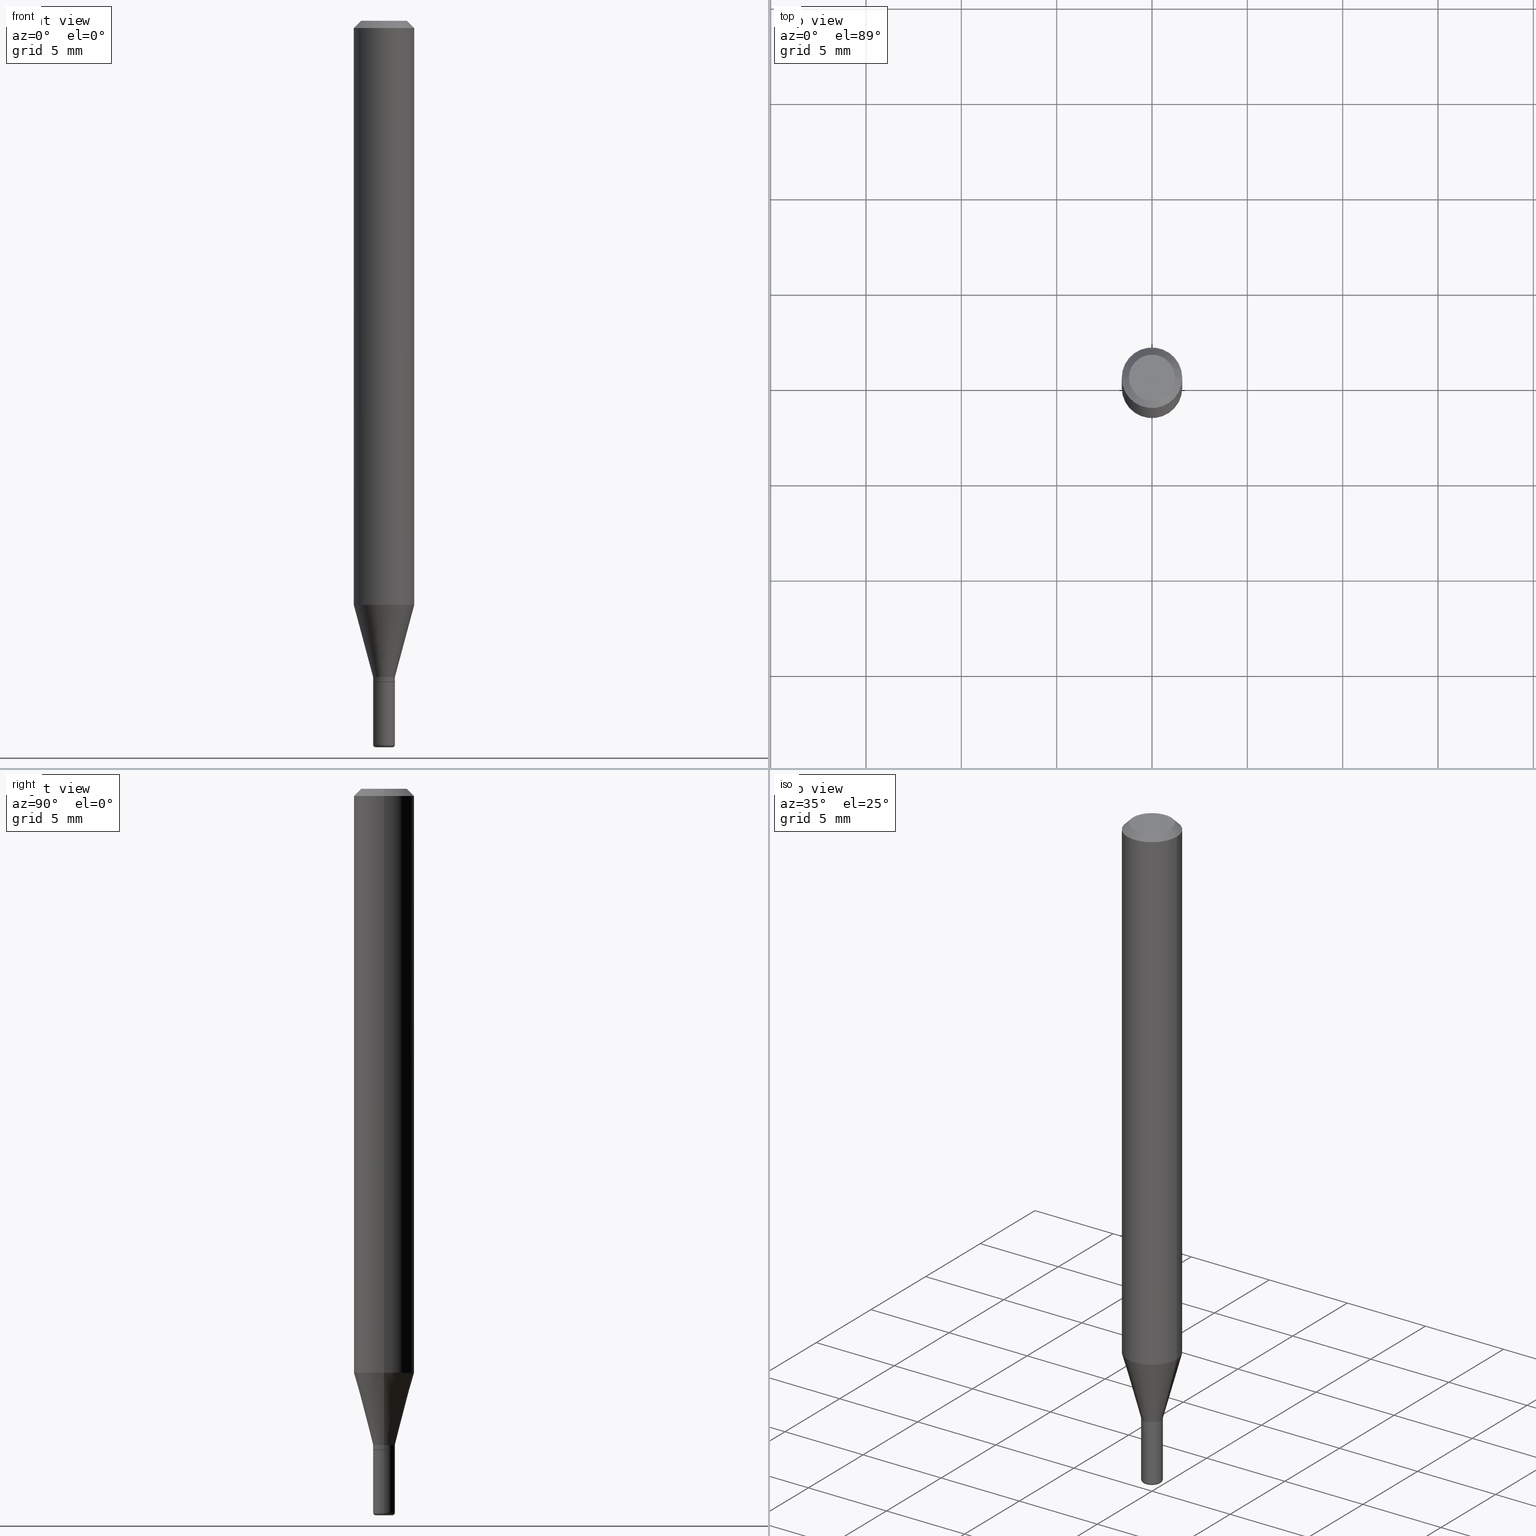
[diagram: canonical four-view strip — front | top / right | iso, engineering-drawing reading convention]
A machine part, canonical four-view strip (front | top / right | iso — engineering-drawing reading convention). The complete STEP part file that produces these views, byte-faithful:
ISO-10303-21;
HEADER;
FILE_DESCRIPTION (( 'STEP AP203' ),
    '1' );
FILE_NAME ('08518.STEP',
    '2024-02-29T19:40:51',
    ( '' ),
    ( '' ),
    'SwSTEP 2.0',
    'SolidWorks 2023',
    '' );
FILE_SCHEMA (( 'CONFIG_CONTROL_DESIGN' ));
ENDSEC;

DATA;
#1 = DIRECTION ( 'NONE',  ( -2.445468806185136597E-29, 3.491481338843145583E-15, 1.000000000000000000 ) ) ;
#2 = CIRCLE ( 'NONE', #133, 0.02249999999999999917 ) ;
#3 = CALENDAR_DATE ( 2024, 29, 2 ) ;
#4 = CARTESIAN_POINT ( 'NONE',  ( 0.02250000000000007896, -4.888073874380405630E-15, -1.355000000000000426 ) ) ;
#5 = VERTEX_POINT ( 'NONE', #52 ) ;
#6 = ORIENTED_EDGE ( 'NONE', *, *, #360, .T. ) ;
#7 = AXIS2_PLACEMENT_3D ( 'NONE', #255, #406, #297 ) ;
#8 = DIRECTION ( 'NONE',  ( 1.000000000000000000, -6.982962677686273810E-15, 0.000000000000000000 ) ) ;
#9 = DIRECTION ( 'NONE',  ( -2.445468806185136597E-29, 3.491481338843145583E-15, 1.000000000000000000 ) ) ;
#10 = ORIENTED_EDGE ( 'NONE', *, *, #319, .F. ) ;
#11 = CARTESIAN_POINT ( 'NONE',  ( 3.655975865246779683E-29, -5.219764601570503930E-15, -1.495000000000000329 ) ) ;
#12 = COORDINATED_UNIVERSAL_TIME_OFFSET ( 5, 0, .BEHIND. ) ;
#13 = CC_DESIGN_PERSON_AND_ORGANIZATION_ASSIGNMENT ( #193, #419, ( #377 ) ) ;
#14 = EDGE_LOOP ( 'NONE', ( #161, #6, #473, #139 ) ) ;
#15 = CIRCLE ( 'NONE', #20, 0.005000000000000181383 ) ;
#16 = DIRECTION ( 'NONE',  ( -2.445468806185136597E-29, 3.491481338843145583E-15, 1.000000000000000000 ) ) ;
#17 = FACE_OUTER_BOUND ( 'NONE', #518, .T. ) ;
#18 = MECHANICAL_CONTEXT ( 'NONE', #486, 'mechanical' ) ;
#19 = FACE_OUTER_BOUND ( 'NONE', #75, .T. ) ;
#20 = AXIS2_PLACEMENT_3D ( 'NONE', #114, #395, #160 ) ;
#21 = CLOSED_SHELL ( 'NONE', ( #245, #349, #184, #100, #317, #359 ) ) ;
#22 = MANIFOLD_SOLID_BREP ( 'Body-Move/Copy2[1]', #21 ) ;
#23 = DATE_AND_TIME ( #312, #436 ) ;
#24 = CARTESIAN_POINT ( 'NONE',  ( 0.06250000000000000000, -4.646176951478207651E-15, -1.205717967697245596 ) ) ;
#25 = MANIFOLD_SOLID_BREP ( 'Body-Move/Copy2[2]', #351 ) ;
#26 = CC_DESIGN_PERSON_AND_ORGANIZATION_ASSIGNMENT ( #58, #226, ( #42 ) ) ;
#27 = CARTESIAN_POINT ( 'NONE',  ( -0.06250000000000000000, 4.440892098500626162E-16, -3.074334431409316114E-30 ) ) ;
#28 = APPROVAL_DATE_TIME ( #240, #384 ) ;
#29 = DIRECTION ( 'NONE',  ( 1.000000000000000000, -6.982962677686261977E-15, 0.000000000000000000 ) ) ;
#30 = EDGE_CURVE ( 'NONE', #197, #336, #113, .T. ) ;
#31 = ORIENTED_EDGE ( 'NONE', *, *, #35, .F. ) ;
#32 = AXIS2_PLACEMENT_3D ( 'NONE', #135, #195, #357 ) ;
#33 = CONICAL_SURFACE ( 'NONE', #315, 0.06250000000000000000, 0.7853981633974488341 ) ;
#34 = VERTEX_POINT ( 'NONE', #81 ) ;
#35 = EDGE_CURVE ( 'NONE', #460, #34, #111, .T. ) ;
#36 = FACE_OUTER_BOUND ( 'NONE', #514, .T. ) ;
#37 = CARTESIAN_POINT ( 'NONE',  ( -0.02250000000000007896, -4.571085098586440920E-15, -1.355000000000000426 ) ) ;
#38 = FACE_OUTER_BOUND ( 'NONE', #85, .T. ) ;
#39 = CIRCLE ( 'NONE', #342, 0.02250000000000017958 ) ;
#40 = EDGE_CURVE ( 'NONE', #162, #206, #444, .T. ) ;
#41 = CARTESIAN_POINT ( 'NONE',  ( 3.338064920442711836E-29, -4.765872027520893280E-15, -1.364999999999999991 ) ) ;
#42 = SECURITY_CLASSIFICATION ( '', '', #65 ) ;
#43 = CARTESIAN_POINT ( 'NONE',  ( 0.06250000000000000000, -4.364351673553916694E-16, 3.047610484872459871E-30 ) ) ;
#44 = ORIENTED_EDGE ( 'NONE', *, *, #186, .T. ) ;
#45 = DIRECTION ( 'NONE',  ( -2.445468806185136877E-29, 3.491481338843145188E-15, 1.000000000000000000 ) ) ;
#46 = CARTESIAN_POINT ( 'NONE',  ( 0.02250000000000008937, -1.571166602479416074E-16, 1.097139774554090038E-30 ) ) ;
#47 = CARTESIAN_POINT ( 'NONE',  ( 0.000000000000000000, 0.000000000000000000, 0.000000000000000000 ) ) ;
#48 = DIRECTION ( 'NONE',  ( -2.445468806185136597E-29, 3.491481338843145583E-15, 1.000000000000000000 ) ) ;
#49 = ORIENTED_EDGE ( 'NONE', *, *, #251, .F. ) ;
#50 = APPROVAL_ROLE ( '' ) ;
#51 = CARTESIAN_POINT ( 'NONE',  ( 3.655975865246779683E-29, -5.219764601570503930E-15, -1.495000000000000329 ) ) ;
#52 = CARTESIAN_POINT ( 'NONE',  ( 0.06250000000000000000, -4.888073874380378612E-16, -0.01499999999999970281 ) ) ;
#53 = CARTESIAN_POINT ( 'NONE',  ( 3.338064920442711836E-29, -4.765872027520893280E-15, -1.364999999999999991 ) ) ;
#54 = VERTEX_POINT ( 'NONE', #399 ) ;
#55 = EDGE_CURVE ( 'NONE', #439, #469, #381, .T. ) ;
#56 = DIRECTION ( 'NONE',  ( 1.000000000000000000, -6.982962677686286432E-15, 0.000000000000000000 ) ) ;
#57 = ORIENTED_EDGE ( 'NONE', *, *, #301, .F. ) ;
#58 = PERSON_AND_ORGANIZATION ( #137, #218 ) ;
#59 = APPROVAL_DATE_TIME ( #265, #475 ) ;
#60 = CIRCLE ( 'NONE', #458, 0.01749999999999999820 ) ;
#61 = AXIS2_PLACEMENT_3D ( 'NONE', #223, #332, #83 ) ;
#62 = CARTESIAN_POINT ( 'NONE',  ( 3.338064920442711836E-29, -4.765872027520893280E-15, -1.364999999999999991 ) ) ;
#63 = EDGE_CURVE ( 'NONE', #439, #87, #134, .T. ) ;
#64 = EDGE_CURVE ( 'NONE', #336, #170, #340, .T. ) ;
#65 = SECURITY_CLASSIFICATION_LEVEL ( 'unclassified' ) ;
#66 = DIRECTION ( 'NONE',  ( 1.000000000000000000, -6.982962677686266711E-15, 0.000000000000000000 ) ) ;
#67 = ADVANCED_BREP_SHAPE_REPRESENTATION ( '08518', ( #22, #25, #487 ), #299 ) ;
#68 = CC_DESIGN_PERSON_AND_ORGANIZATION_ASSIGNMENT ( #230, #182, ( #397 ) ) ;
#69 = AXIS2_PLACEMENT_3D ( 'NONE', #138, #16, #491 ) ;
#70 = PERSON_AND_ORGANIZATION ( #137, #218 ) ;
#71 = LOCAL_TIME ( 14, 40, 51.00000000000000000, #104 ) ;
#72 = CARTESIAN_POINT ( 'NONE',  ( 0.02250000000000008590, -1.571166602479415828E-16, 1.097139774554089687E-30 ) ) ;
#73 = ADVANCED_FACE ( 'NONE', ( #515 ), #437, .T. ) ;
#74 = EDGE_LOOP ( 'NONE', ( #402, #380, #393, #248 ) ) ;
#75 = EDGE_LOOP ( 'NONE', ( #480, #370, #476, #372 ) ) ;
#76 = CARTESIAN_POINT ( 'NONE',  ( 2.948545679060552191E-29, -4.209741784122815192E-15, -1.205717967697245596 ) ) ;
#77 = AXIS2_PLACEMENT_3D ( 'NONE', #363, #322, #464 ) ;
#78 = ORIENTED_EDGE ( 'NONE', *, *, #266, .F. ) ;
#79 = DIRECTION ( 'NONE',  ( -2.445468806185136597E-29, 3.491481338843145583E-15, 1.000000000000000000 ) ) ;
#80 = ORIENTED_EDGE ( 'NONE', *, *, #438, .F. ) ;
#81 = CARTESIAN_POINT ( 'NONE',  ( -0.02200000000000008546, -4.606903398479559111E-15, -1.364999999999999991 ) ) ;
#82 = CONICAL_SURFACE ( 'NONE', #225, 0.06250000000000000000, 0.7853981633974488341 ) ;
#83 = DIRECTION ( 'NONE',  ( 1.000000000000000000, -6.982962677686266711E-15, 0.000000000000000000 ) ) ;
#84 = LINE ( 'NONE', #37, #149 ) ;
#85 = EDGE_LOOP ( 'NONE', ( #129, #80, #435, #280 ) ) ;
#86 = ADVANCED_FACE ( 'NONE', ( #38 ), #82, .T. ) ;
#87 = VERTEX_POINT ( 'NONE', #466 ) ;
#88 = AXIS2_PLACEMENT_3D ( 'NONE', #185, #385, #237 ) ;
#89 = VECTOR ( 'NONE', #411, 39.37007874015748143 ) ;
#90 = CC_DESIGN_SECURITY_CLASSIFICATION ( #42, ( #377 ) ) ;
#91 = ORIENTED_EDGE ( 'NONE', *, *, #507, .T. ) ;
#92 = APPROVAL_STATUS ( 'not_yet_approved' ) ;
#93 = FACE_OUTER_BOUND ( 'NONE', #210, .T. ) ;
#94 = DIRECTION ( 'NONE',  ( -2.445468806185136597E-29, 3.491481338843145583E-15, 1.000000000000000000 ) ) ;
#95 = DIRECTION ( 'NONE',  ( -2.445468806185136877E-29, 3.491481338843145188E-15, 1.000000000000000000 ) ) ;
#96 = DIRECTION ( 'NONE',  ( -2.445468806185136597E-29, 3.491481338843145583E-15, 1.000000000000000000 ) ) ;
#97 = PRODUCT_RELATED_PRODUCT_CATEGORY ( 'detail', '', ( #303 ) ) ;
#98 = CIRCLE ( 'NONE', #330, 0.06250000000000000000 ) ;
#99 = APPROVAL_PERSON_ORGANIZATION ( #70, #384, #500 ) ;
#100 = ADVANCED_FACE ( 'NONE', ( #281 ), #431, .T. ) ;
#101 = PERSON_AND_ORGANIZATION ( #137, #218 ) ;
#102 = FACE_OUTER_BOUND ( 'NONE', #124, .T. ) ;
#103 = EDGE_CURVE ( 'NONE', #170, #121, #398, .T. ) ;
#104 = COORDINATED_UNIVERSAL_TIME_OFFSET ( 5, 0, .BEHIND. ) ;
#105 = AXIS2_PLACEMENT_3D ( 'NONE', #396, #9, #368 ) ;
#106 = AXIS2_PLACEMENT_3D ( 'NONE', #172, #212, #337 ) ;
#107 = CALENDAR_DATE ( 2024, 29, 2 ) ;
#108 = EDGE_CURVE ( 'NONE', #440, #5, #449, .T. ) ;
#109 = CARTESIAN_POINT ( 'NONE',  ( 0.02200000000000008546, -4.919497206429991905E-15, -1.364999999999999991 ) ) ;
#110 = TOROIDAL_SURFACE ( 'NONE', #144, 0.01749999999999999820, 0.005000000000000179648 ) ;
#111 = CIRCLE ( 'NONE', #321, 0.02200000000000008546 ) ;
#112 = VECTOR ( 'NONE', #294, 39.37007874015748143 ) ;
#113 = CIRCLE ( 'NONE', #348, 0.02250000000000008937 ) ;
#114 = CARTESIAN_POINT ( 'NONE',  ( -0.01749999999999999820, -5.095419622812485892E-15, -1.495000000000000107 ) ) ;
#115 = DIRECTION ( 'NONE',  ( -2.445468806185136877E-29, 3.491481338843145188E-15, 1.000000000000000000 ) ) ;
#116 = CC_DESIGN_DATE_AND_TIME_ASSIGNMENT ( #23, #457, ( #397 ) ) ;
#117 = ORIENTED_EDGE ( 'NONE', *, *, #151, .F. ) ;
#118 = DIRECTION ( 'NONE',  ( -2.445468806185136597E-29, 3.491481338843145583E-15, 1.000000000000000000 ) ) ;
#119 = CARTESIAN_POINT ( 'NONE',  ( 0.02250000000000007896, -4.888073874380405630E-15, -1.355000000000000426 ) ) ;
#120 = DIRECTION ( 'NONE',  ( -2.445468806185136597E-29, 3.491481338843145583E-15, 1.000000000000000000 ) ) ;
#121 = VERTEX_POINT ( 'NONE', #404 ) ;
#122 = CARTESIAN_POINT ( 'NONE',  ( 3.336842186039618474E-29, -4.764126286851472566E-15, -1.364499999999999824 ) ) ;
#123 =( NAMED_UNIT ( * ) PLANE_ANGLE_UNIT ( ) SI_UNIT ( $, .RADIAN. ) );
#124 = EDGE_LOOP ( 'NONE', ( #49, #220, #430, #382 ) ) ;
#125 = CYLINDRICAL_SURFACE ( 'NONE', #106, 0.02250000000000008590 ) ;
#126 = EDGE_CURVE ( 'NONE', #87, #439, #39, .T. ) ;
#127 = DIRECTION ( 'NONE',  ( 2.438088387897960049E-29, -3.491481338843145188E-15, -1.000000000000000000 ) ) ;
#128 = EDGE_CURVE ( 'NONE', #336, #197, #434, .T. ) ;
#129 = ORIENTED_EDGE ( 'NONE', *, *, #513, .F. ) ;
#130 = VERTEX_POINT ( 'NONE', #442 ) ;
#131 = LINE ( 'NONE', #168, #112 ) ;
#132 = DIRECTION ( 'NONE',  ( 1.000000000000000000, -6.982962677686283277E-15, 0.000000000000000000 ) ) ;
#133 = AXIS2_PLACEMENT_3D ( 'NONE', #445, #488, #263 ) ;
#134 = CIRCLE ( 'NONE', #422, 0.02250000000000017958 ) ;
#135 = CARTESIAN_POINT ( 'NONE',  ( 0.000000000000000000, 0.000000000000000000, 0.000000000000000000 ) ) ;
#136 = CARTESIAN_POINT ( 'NONE',  ( 3.313610232380861411E-29, -4.730957214132463998E-15, -1.355000000000000426 ) ) ;
#137 = PERSON ( 'UNSPECIFIED', 'UNSPECIFIED', 'UNSPECIFIED', ('UNSPECIFIED'), ('UNSPECIFIED'), ('UNSPECIFIED') ) ;
#138 = CARTESIAN_POINT ( 'NONE',  ( 3.668203209277706016E-29, -5.237222008264719754E-15, -1.500000000000000444 ) ) ;
#139 = ORIENTED_EDGE ( 'NONE', *, *, #64, .F. ) ;
#140 = PRODUCT_DEFINITION_SHAPE ( 'NONE', 'NONE',  #397 ) ;
#141 = ORIENTED_EDGE ( 'NONE', *, *, #64, .T. ) ;
#142 = DIRECTION ( 'NONE',  ( -2.445468806185136597E-29, 3.491481338843145583E-15, 1.000000000000000000 ) ) ;
#143 = CARTESIAN_POINT ( 'NONE',  ( 3.668203209277706016E-29, -5.237222008264719754E-15, -1.500000000000000444 ) ) ;
#144 = AXIS2_PLACEMENT_3D ( 'NONE', #302, #96, #415 ) ;
#145 = ORIENTED_EDGE ( 'NONE', *, *, #507, .F. ) ;
#146 = APPROVAL_STATUS ( 'not_yet_approved' ) ;
#147 = FACE_OUTER_BOUND ( 'NONE', #152, .T. ) ;
#148 = COORDINATED_UNIVERSAL_TIME_OFFSET ( 5, 0, .BEHIND. ) ;
#149 = VECTOR ( 'NONE', #338, 39.37007874015748854 ) ;
#150 = LOCAL_TIME ( 14, 40, 51.00000000000000000, #148 ) ;
#151 = EDGE_CURVE ( 'NONE', #440, #130, #472, .T. ) ;
#152 = EDGE_LOOP ( 'NONE', ( #408, #512 ) ) ;
#153 = AXIS2_PLACEMENT_3D ( 'NONE', #136, #94, #309 ) ;
#154 = DIRECTION ( 'NONE',  ( -2.445468806185136597E-29, 3.491481338843145583E-15, 1.000000000000000000 ) ) ;
#155 = CIRCLE ( 'NONE', #61, 0.06250000000000000000 ) ;
#156 = VECTOR ( 'NONE', #45, 39.37007874015748143 ) ;
#157 = CC_DESIGN_APPROVAL ( #502, ( #42 ) ) ;
#158 = DIRECTION ( 'NONE',  ( 2.445468806185136597E-29, -3.491481338843145583E-15, -1.000000000000000000 ) ) ;
#159 = DATE_AND_TIME ( #3, #189 ) ;
#160 = DIRECTION ( 'NONE',  ( -1.000000000000000000, 7.105427357601055501E-15, 0.000000000000000000 ) ) ;
#161 = ORIENTED_EDGE ( 'NONE', *, *, #128, .T. ) ;
#162 = VERTEX_POINT ( 'NONE', #327 ) ;
#163 = ORIENTED_EDGE ( 'NONE', *, *, #493, .F. ) ;
#164 = FACE_OUTER_BOUND ( 'NONE', #216, .T. ) ;
#165 = ORIENTED_EDGE ( 'NONE', *, *, #301, .T. ) ;
#166 = ORIENTED_EDGE ( 'NONE', *, *, #126, .F. ) ;
#167 = CONICAL_SURFACE ( 'NONE', #261, 0.02200000000000008546, 0.7853981633972775267 ) ;
#168 = CARTESIAN_POINT ( 'NONE',  ( 0.06250000000000000000, -4.811533449433669144E-16, -0.01499999999999970281 ) ) ;
#169 = DIRECTION ( 'NONE',  ( 1.000000000000000000, -6.982962677686255667E-15, 0.000000000000000000 ) ) ;
#170 = VERTEX_POINT ( 'NONE', #4 ) ;
#171 = ORIENTED_EDGE ( 'NONE', *, *, #463, .T. ) ;
#172 = CARTESIAN_POINT ( 'NONE',  ( 0.000000000000000000, 0.000000000000000000, 0.000000000000000000 ) ) ;
#173 = PLANE ( 'NONE',  #400 ) ;
#174 = ORIENTED_EDGE ( 'NONE', *, *, #268, .F. ) ;
#175 = DIRECTION ( 'NONE',  ( 1.000000000000000000, -6.982962677686255667E-15, 0.000000000000000000 ) ) ;
#176 = CALENDAR_DATE ( 2024, 29, 2 ) ;
#177 = ADVANCED_FACE ( 'NONE', ( #511 ), #494, .T. ) ;
#178 = ORIENTED_EDGE ( 'NONE', *, *, #186, .F. ) ;
#179 = DATE_TIME_ROLE ( 'classification_date' ) ;
#180 = PLANE ( 'NONE',  #267 ) ;
#181 = CIRCLE ( 'NONE', #394, 0.04750000000000000749 ) ;
#182 = PERSON_AND_ORGANIZATION_ROLE ( 'creator' ) ;
#183 = CYLINDRICAL_SURFACE ( 'NONE', #32, 0.02250000000000008590 ) ;
#184 = ADVANCED_FACE ( 'NONE', ( #479 ), #173, .F. ) ;
#185 = CARTESIAN_POINT ( 'NONE',  ( -6.680649051745406845E-45, 9.538196290434862081E-31, 2.731847993664263218E-16 ) ) ;
#186 = EDGE_CURVE ( 'NONE', #121, #130, #84, .T. ) ;
#187 = LINE ( 'NONE', #109, #287 ) ;
#188 = VECTOR ( 'NONE', #115, 39.37007874015748143 ) ;
#189 = LOCAL_TIME ( 14, 40, 51.00000000000000000, #214 ) ;
#190 = APPROVAL_ROLE ( '' ) ;
#191 = DIRECTION ( 'NONE',  ( -2.445468806185136877E-29, 3.491481338843145188E-15, 1.000000000000000000 ) ) ;
#192 = EDGE_CURVE ( 'NONE', #288, #162, #181, .T. ) ;
#193 = PERSON_AND_ORGANIZATION ( #137, #218 ) ;
#194 = DIRECTION ( 'NONE',  ( -2.445468806185136597E-29, 3.491481338843145583E-15, 1.000000000000000000 ) ) ;
#195 = DIRECTION ( 'NONE',  ( -2.445468806185136597E-29, 3.491481338843145583E-15, 1.000000000000000000 ) ) ;
#196 = AXIS2_PLACEMENT_3D ( 'NONE', #313, #455, #275 ) ;
#197 = VERTEX_POINT ( 'NONE', #199 ) ;
#198 = ADVANCED_FACE ( 'NONE', ( #341 ), #183, .T. ) ;
#199 = CARTESIAN_POINT ( 'NONE',  ( -0.02250000000000008937, -4.604254171305447910E-15, -1.364499999999999824 ) ) ;
#200 = ORIENTED_EDGE ( 'NONE', *, *, #392, .T. ) ;
#201 = AXIS2_PLACEMENT_3D ( 'NONE', #235, #454, #420 ) ;
#202 = VECTOR ( 'NONE', #286, 39.37007874015748143 ) ;
#203 = DIRECTION ( 'NONE',  ( -0.7071067811864267805, 7.493145998869918709E-15, 0.7071067811866682540 ) ) ;
#204 = DIRECTION ( 'NONE',  ( 1.000000000000000000, -6.982962677686261977E-15, 0.000000000000000000 ) ) ;
#205 = DIRECTION ( 'NONE',  ( -2.445468806185136877E-29, 3.491481338843145188E-15, 1.000000000000000000 ) ) ;
#206 = VERTEX_POINT ( 'NONE', #295 ) ;
#207 = EDGE_LOOP ( 'NONE', ( #178, #91, #401, #174 ) ) ;
#208 = DIRECTION ( 'NONE',  ( 1.000000000000000000, -6.982962677686286432E-15, 0.000000000000000000 ) ) ;
#209 = DIRECTION ( 'NONE',  ( 0.000000000000000000, 0.000000000000000000, 1.000000000000000000 ) ) ;
#210 = EDGE_LOOP ( 'NONE', ( #446, #165, #166, #163 ) ) ;
#211 = ORIENTED_EDGE ( 'NONE', *, *, #268, .T. ) ;
#212 = DIRECTION ( 'NONE',  ( -2.445468806185136597E-29, 3.491481338843145583E-15, 1.000000000000000000 ) ) ;
#213 = CC_DESIGN_DATE_AND_TIME_ASSIGNMENT ( #306, #179, ( #42 ) ) ;
#214 = COORDINATED_UNIVERSAL_TIME_OFFSET ( 5, 0, .BEHIND. ) ;
#215 = DIRECTION ( 'NONE',  ( 1.000000000000000000, -6.982962677686286432E-15, 0.000000000000000000 ) ) ;
#216 = EDGE_LOOP ( 'NONE', ( #505, #328 ) ) ;
#217 = DIRECTION ( 'NONE',  ( 1.000000000000000000, -6.982962677686261977E-15, 0.000000000000000000 ) ) ;
#218 = ORGANIZATION ( 'UNSPECIFIED', 'UNSPECIFIED', '' ) ;
#219 = DIRECTION ( 'NONE',  ( -2.445468806185136597E-29, 3.491481338843145583E-15, 1.000000000000000000 ) ) ;
#220 = ORIENTED_EDGE ( 'NONE', *, *, #390, .T. ) ;
#221 = DIRECTION ( 'NONE',  ( -2.445468806185136597E-29, 3.491481338843145583E-15, 1.000000000000000000 ) ) ;
#222 = DIRECTION ( 'NONE',  ( 1.000000000000000000, -6.982962677686265922E-15, 4.876176775795935793E-29 ) ) ;
#223 = CARTESIAN_POINT ( 'NONE',  ( 3.668203209277632395E-31, -5.237222008264614861E-17, -0.01499999999999970281 ) ) ;
#224 = ORIENTED_EDGE ( 'NONE', *, *, #108, .F. ) ;
#225 = AXIS2_PLACEMENT_3D ( 'NONE', #365, #158, #323 ) ;
#226 = PERSON_AND_ORGANIZATION_ROLE ( 'classification_officer' ) ;
#227 = EDGE_CURVE ( 'NONE', #469, #284, #2, .T. ) ;
#228 = CARTESIAN_POINT ( 'NONE',  ( -0.02250000000000008590, 1.598721155460231522E-16, -1.106760395307357984E-30 ) ) ;
#229 = LINE ( 'NONE', #228, #451 ) ;
#230 = PERSON_AND_ORGANIZATION ( #137, #218 ) ;
#231 = AXIS2_PLACEMENT_3D ( 'NONE', #471, #244, #426 ) ;
#232 = DIRECTION ( 'NONE',  ( 1.000000000000000000, 0.000000000000000000, 0.000000000000000000 ) ) ;
#233 = CARTESIAN_POINT ( 'NONE',  ( 3.338064920442711836E-29, -4.765872027520893280E-15, -1.364999999999999991 ) ) ;
#234 = DIRECTION ( 'NONE',  ( -2.445468806185136597E-29, 3.491481338843145583E-15, 1.000000000000000000 ) ) ;
#235 = CARTESIAN_POINT ( 'NONE',  ( 3.338064920442711836E-29, -4.765872027520893280E-15, -1.364999999999999991 ) ) ;
#236 = APPLICATION_PROTOCOL_DEFINITION ( 'international standard', 'config_control_design', 1994, #486 ) ;
#237 = DIRECTION ( 'NONE',  ( 1.000000000000000000, -6.982962677686266711E-15, 4.852736867747365086E-29 ) ) ;
#238 = AXIS2_PLACEMENT_3D ( 'NONE', #345, #194, #66 ) ;
#239 = CARTESIAN_POINT ( 'NONE',  ( 0.02200000000000008546, -4.919497206429991905E-15, -1.364999999999999991 ) ) ;
#240 = DATE_AND_TIME ( #107, #150 ) ;
#241 = UNCERTAINTY_MEASURE_WITH_UNIT (LENGTH_MEASURE( 1.000000000000000082E-05 ), #252, 'distance_accuracy_value', 'NONE');
#242 = ORIENTED_EDGE ( 'NONE', *, *, #319, .T. ) ;
#243 = LOCAL_TIME ( 14, 40, 51.00000000000000000, #12 ) ;
#244 = DIRECTION ( 'NONE',  ( -2.445468806185136597E-29, 3.491481338843145583E-15, 1.000000000000000000 ) ) ;
#245 = ADVANCED_FACE ( 'NONE', ( #93 ), #110, .T. ) ;
#246 = EDGE_CURVE ( 'NONE', #54, #264, #375, .T. ) ;
#247 = CARTESIAN_POINT ( 'NONE',  ( 3.336842186039618474E-29, -4.764126286851472566E-15, -1.364499999999999824 ) ) ;
#248 = ORIENTED_EDGE ( 'NONE', *, *, #269, .F. ) ;
#249 = AXIS2_PLACEMENT_3D ( 'NONE', #407, #48, #215 ) ;
#250 = CIRCLE ( 'NONE', #474, 0.005000000000000181383 ) ;
#251 = EDGE_CURVE ( 'NONE', #34, #197, #304, .T. ) ;
#252 =( CONVERSION_BASED_UNIT ( 'INCH', #333 ) LENGTH_UNIT ( ) NAMED_UNIT ( #379 ) );
#253 = DIRECTION ( 'NONE',  ( -2.445468806185136597E-29, 3.491481338843145583E-15, 1.000000000000000000 ) ) ;
#254 = ORIENTED_EDGE ( 'NONE', *, *, #493, .T. ) ;
#255 = CARTESIAN_POINT ( 'NONE',  ( 0.000000000000000000, 0.000000000000000000, 0.000000000000000000 ) ) ;
#256 = CARTESIAN_POINT ( 'NONE',  ( 3.582686580359767159E-29, -5.359686688179454114E-15, -1.500000000000000444 ) ) ;
#257 = ORIENTED_EDGE ( 'NONE', *, *, #63, .F. ) ;
#258 = DIRECTION ( 'NONE',  ( -6.982962677686266711E-15, -1.000000000000000000, 3.491481338843145583E-15 ) ) ;
#259 = EDGE_LOOP ( 'NONE', ( #374, #326, #456, #10 ) ) ;
#260 = CARTESIAN_POINT ( 'NONE',  ( -0.02250000000000008937, 1.598721155460231769E-16, -1.106760395307358334E-30 ) ) ;
#261 = AXIS2_PLACEMENT_3D ( 'NONE', #41, #154, #204 ) ;
#262 =( LENGTH_UNIT ( ) NAMED_UNIT ( * ) SI_UNIT ( $, .METRE. ) );
#263 = DIRECTION ( 'NONE',  ( 1.000000000000000000, -6.982962677686269077E-15, 0.000000000000000000 ) ) ;
#264 = VERTEX_POINT ( 'NONE', #324 ) ;
#265 = DATE_AND_TIME ( #274, #71 ) ;
#266 = EDGE_CURVE ( 'NONE', #170, #440, #467, .T. ) ;
#267 = AXIS2_PLACEMENT_3D ( 'NONE', #256, #496, #222 ) ;
#268 = EDGE_CURVE ( 'NONE', #130, #440, #98, .T. ) ;
#269 = EDGE_CURVE ( 'NONE', #460, #336, #187, .T. ) ;
#270 = DIRECTION ( 'NONE',  ( -2.445468806185136597E-29, 3.491481338843145583E-15, 1.000000000000000000 ) ) ;
#271 = PERSON_AND_ORGANIZATION ( #137, #218 ) ;
#272 = PERSON_AND_ORGANIZATION_ROLE ( 'design_supplier' ) ;
#273 = EDGE_CURVE ( 'NONE', #264, #54, #60, .T. ) ;
#274 = CALENDAR_DATE ( 2024, 29, 2 ) ;
#275 = DIRECTION ( 'NONE',  ( -1.000000000000000000, 6.982962677686265922E-15, -4.876176775795935793E-29 ) ) ;
#276 = CIRCLE ( 'NONE', #88, 0.04750000000000000749 ) ;
#277 = CC_DESIGN_APPROVAL ( #384, ( #377 ) ) ;
#278 = COORDINATED_UNIVERSAL_TIME_OFFSET ( 5, 0, .BEHIND. ) ;
#279 = CYLINDRICAL_SURFACE ( 'NONE', #231, 0.06250000000000000000 ) ;
#280 = ORIENTED_EDGE ( 'NONE', *, *, #424, .T. ) ;
#281 = FACE_OUTER_BOUND ( 'NONE', #369, .T. ) ;
#282 = ADVANCED_FACE ( 'NONE', ( #17 ), #448, .T. ) ;
#283 = DIRECTION ( 'NONE',  ( 0.2588190451025206840, 1.565188264969626504E-15, 0.9659258262890682012 ) ) ;
#284 = VERTEX_POINT ( 'NONE', #429 ) ;
#285 = CC_DESIGN_PERSON_AND_ORGANIZATION_ASSIGNMENT ( #101, #272, ( #377 ) ) ;
#286 = DIRECTION ( 'NONE',  ( -0.7071067811865479058, 2.468850131082261005E-15, -0.7071067811865471286 ) ) ;
#287 = VECTOR ( 'NONE', #418, 39.37007874015748143 ) ;
#288 = VERTEX_POINT ( 'NONE', #510 ) ;
#289 = EDGE_LOOP ( 'NONE', ( #31, #373 ) ) ;
#290 = CARTESIAN_POINT ( 'NONE',  ( 0.01749999999999999820, -5.341966448430012335E-15, -1.495000000000000107 ) ) ;
#291 = DIRECTION ( 'NONE',  ( -1.000000000000000000, 6.982962677686265922E-15, -4.876176775795935793E-29 ) ) ;
#292 = ORIENTED_EDGE ( 'NONE', *, *, #108, .T. ) ;
#293 = CARTESIAN_POINT ( 'NONE',  ( -0.06250000000000000000, 3.840629472727455270E-16, -0.01499999999999970281 ) ) ;
#294 = DIRECTION ( 'NONE',  ( 0.7071067811865479058, -7.319954787623257623E-15, -0.7071067811865471286 ) ) ;
#295 = CARTESIAN_POINT ( 'NONE',  ( -0.06250000000000000000, -1.686967792252668322E-15, -0.01499999999999970281 ) ) ;
#296 = ORIENTED_EDGE ( 'NONE', *, *, #227, .F. ) ;
#297 = DIRECTION ( 'NONE',  ( 1.000000000000000000, -6.982962677686266711E-15, 4.876176775795935793E-29 ) ) ;
#298 = VECTOR ( 'NONE', #203, 39.37007874015748143 ) ;
#299 =( GEOMETRIC_REPRESENTATION_CONTEXT ( 3 ) GLOBAL_UNCERTAINTY_ASSIGNED_CONTEXT ( ( #241 ) ) GLOBAL_UNIT_ASSIGNED_CONTEXT ( ( #252, #123, #478 ) ) REPRESENTATION_CONTEXT ( 'NONE', 'WORKASPACE' ) );
#300 = AXIS2_PLACEMENT_3D ( 'NONE', #489, #270, #344 ) ;
#301 = EDGE_CURVE ( 'NONE', #264, #439, #15, .T. ) ;
#302 = CARTESIAN_POINT ( 'NONE',  ( 3.655975865246779122E-29, -5.219764601570503141E-15, -1.495000000000000107 ) ) ;
#303 = PRODUCT ( '08518', '08518', '', ( #18 ) ) ;
#304 = LINE ( 'NONE', #428, #298 ) ;
#305 = AXIS2_PLACEMENT_3D ( 'NONE', #53, #378, #413 ) ;
#306 = DATE_AND_TIME ( #176, #243 ) ;
#307 = AXIS2_PLACEMENT_3D ( 'NONE', #477, #1, #56 ) ;
#308 = DIRECTION ( 'NONE',  ( 1.000000000000000000, -6.982962677686250144E-15, 0.000000000000000000 ) ) ;
#309 = DIRECTION ( 'NONE',  ( 1.000000000000000000, -6.982962677686286432E-15, 0.000000000000000000 ) ) ;
#310 = PERSON_AND_ORGANIZATION ( #137, #218 ) ;
#311 = EDGE_LOOP ( 'NONE', ( #57, #353, #254, #257 ) ) ;
#312 = CALENDAR_DATE ( 2024, 29, 2 ) ;
#313 = CARTESIAN_POINT ( 'NONE',  ( 3.316907271900976589E-16, 0.04750000000000000749, -2.925296391183627249E-17 ) ) ;
#314 = PLANE ( 'NONE',  #305 ) ;
#315 = AXIS2_PLACEMENT_3D ( 'NONE', #417, #391, #499 ) ;
#316 = DESIGN_CONTEXT ( 'detailed design', #450, 'design' ) ;
#317 = ADVANCED_FACE ( 'NONE', ( #462 ), #410, .T. ) ;
#318 = ADVANCED_FACE ( 'NONE', ( #36 ), #279, .T. ) ;
#319 = EDGE_CURVE ( 'NONE', #87, #284, #361, .T. ) ;
#320 = CONICAL_SURFACE ( 'NONE', #201, 0.02200000000000008546, 0.7853981633972775267 ) ;
#321 = AXIS2_PLACEMENT_3D ( 'NONE', #484, #221, #217 ) ;
#322 = DIRECTION ( 'NONE',  ( -2.445468806185136597E-29, 3.491481338843145583E-15, 1.000000000000000000 ) ) ;
#323 = DIRECTION ( 'NONE',  ( -1.000000000000000000, 6.982962677686266711E-15, 0.000000000000000000 ) ) ;
#324 = CARTESIAN_POINT ( 'NONE',  ( -0.01749999999999999820, -5.086384757765590495E-15, -1.500000000000000444 ) ) ;
#325 = EDGE_LOOP ( 'NONE', ( #376, #470, #141, #145 ) ) ;
#326 = ORIENTED_EDGE ( 'NONE', *, *, #55, .T. ) ;
#327 = CARTESIAN_POINT ( 'NONE',  ( -0.04750000000000000749, 3.578768372314221353E-16, 2.731847993664239060E-16 ) ) ;
#328 = ORIENTED_EDGE ( 'NONE', *, *, #273, .F. ) ;
#329 = VECTOR ( 'NONE', #283, 39.37007874015748854 ) ;
#330 = AXIS2_PLACEMENT_3D ( 'NONE', #76, #459, #503 ) ;
#331 = APPROVAL_PERSON_ORGANIZATION ( #271, #475, #190 ) ;
#332 = DIRECTION ( 'NONE',  ( -2.445468806185136597E-29, 3.491481338843145583E-15, 1.000000000000000000 ) ) ;
#333 = LENGTH_MEASURE_WITH_UNIT ( LENGTH_MEASURE( 0.02539999999999999897 ), #262 );
#334 = EDGE_LOOP ( 'NONE', ( #200, #339 ) ) ;
#335 = ORIENTED_EDGE ( 'NONE', *, *, #424, .F. ) ;
#336 = VERTEX_POINT ( 'NONE', #506 ) ;
#337 = DIRECTION ( 'NONE',  ( 1.000000000000000000, -6.982962677686265922E-15, 4.876176775795935793E-29 ) ) ;
#338 = DIRECTION ( 'NONE',  ( -0.2588190451025206840, 5.211531920934545520E-15, 0.9659258262890682012 ) ) ;
#339 = ORIENTED_EDGE ( 'NONE', *, *, #227, .T. ) ;
#340 = LINE ( 'NONE', #72, #156 ) ;
#341 = FACE_OUTER_BOUND ( 'NONE', #14, .T. ) ;
#342 = AXIS2_PLACEMENT_3D ( 'NONE', #51, #433, #169 ) ;
#343 = ADVANCED_FACE ( 'NONE', ( #403 ), #167, .T. ) ;
#344 = DIRECTION ( 'NONE',  ( 1.000000000000000000, -6.982962677686265922E-15, 4.876176775795936353E-29 ) ) ;
#345 = CARTESIAN_POINT ( 'NONE',  ( 3.668203209277632395E-31, -5.237222008264614861E-17, -0.01499999999999970281 ) ) ;
#346 = CARTESIAN_POINT ( 'NONE',  ( -0.02250000000000017958, -4.832946198999673555E-15, -1.495000000000000329 ) ) ;
#347 = VECTOR ( 'NONE', #205, 39.37007874015748143 ) ;
#348 = AXIS2_PLACEMENT_3D ( 'NONE', #122, #118, #132 ) ;
#349 = ADVANCED_FACE ( 'NONE', ( #367 ), #468, .T. ) ;
#350 = CIRCLE ( 'NONE', #307, 0.02250000000000007896 ) ;
#351 = CLOSED_SHELL ( 'NONE', ( #198, #343, #366, #318, #282, #177, #73, #86, #452, #490, #386, #509 ) ) ;
#352 = CARTESIAN_POINT ( 'NONE',  ( 3.313610232380861411E-29, -4.730957214132463998E-15, -1.355000000000000426 ) ) ;
#353 = ORIENTED_EDGE ( 'NONE', *, *, #273, .T. ) ;
#354 = CC_DESIGN_PERSON_AND_ORGANIZATION_ASSIGNMENT ( #310, #453, ( #303 ) ) ;
#355 = APPROVAL_STATUS ( 'not_yet_approved' ) ;
#356 = CARTESIAN_POINT ( 'NONE',  ( -0.02249999999999999917, -4.832946198999675921E-15, -1.364999999999999991 ) ) ;
#357 = DIRECTION ( 'NONE',  ( 1.000000000000000000, -6.982962677686265922E-15, 4.876176775795935793E-29 ) ) ;
#358 = CIRCLE ( 'NONE', #416, 0.02200000000000008546 ) ;
#359 = ADVANCED_FACE ( 'NONE', ( #164 ), #180, .F. ) ;
#360 = EDGE_CURVE ( 'NONE', #197, #121, #229, .T. ) ;
#361 = LINE ( 'NONE', #46, #188 ) ;
#362 = ORIENTED_EDGE ( 'NONE', *, *, #55, .F. ) ;
#363 = CARTESIAN_POINT ( 'NONE',  ( 3.655975865246779122E-29, -5.219764601570503141E-15, -1.495000000000000107 ) ) ;
#364 = CARTESIAN_POINT ( 'NONE',  ( 1.571166602479743698E-16, 0.02249999999999523215, -1.364999999999999991 ) ) ;
#365 = CARTESIAN_POINT ( 'NONE',  ( 3.668203209277632395E-31, -5.237222008264614861E-17, -0.01499999999999970281 ) ) ;
#366 = ADVANCED_FACE ( 'NONE', ( #19 ), #33, .T. ) ;
#367 = FACE_OUTER_BOUND ( 'NONE', #259, .T. ) ;
#368 = DIRECTION ( 'NONE',  ( 1.000000000000000000, -6.982962677686270655E-15, 0.000000000000000000 ) ) ;
#369 = EDGE_LOOP ( 'NONE', ( #362, #483, #242, #296 ) ) ;
#370 = ORIENTED_EDGE ( 'NONE', *, *, #513, .T. ) ;
#371 = CARTESIAN_POINT ( 'NONE',  ( 0.000000000000000000, 0.000000000000000000, 0.000000000000000000 ) ) ;
#372 = ORIENTED_EDGE ( 'NONE', *, *, #40, .F. ) ;
#373 = ORIENTED_EDGE ( 'NONE', *, *, #390, .F. ) ;
#374 = ORIENTED_EDGE ( 'NONE', *, *, #126, .T. ) ;
#375 = CIRCLE ( 'NONE', #69, 0.01749999999999999820 ) ;
#376 = ORIENTED_EDGE ( 'NONE', *, *, #360, .F. ) ;
#377 = PRODUCT_DEFINITION_FORMATION_WITH_SPECIFIED_SOURCE ( 'ANY', '', #303, .NOT_KNOWN. ) ;
#378 = DIRECTION ( 'NONE',  ( -2.438088387897960049E-29, 3.491481338843145188E-15, 1.000000000000000000 ) ) ;
#379 = DIMENSIONAL_EXPONENTS ( 1.000000000000000000, 0.000000000000000000, 0.000000000000000000, 0.000000000000000000, 0.000000000000000000, 0.000000000000000000, 0.000000000000000000 ) ;
#380 = ORIENTED_EDGE ( 'NONE', *, *, #251, .T. ) ;
#381 = LINE ( 'NONE', #260, #89 ) ;
#382 = ORIENTED_EDGE ( 'NONE', *, *, #30, .F. ) ;
#383 = AXIS2_PLACEMENT_3D ( 'NONE', #247, #253, #517 ) ;
#384 = APPROVAL ( #355, 'UNSPECIFIED' ) ;
#385 = DIRECTION ( 'NONE',  ( -2.445468806185136597E-29, 3.491481338843145583E-15, 1.000000000000000000 ) ) ;
#386 = ADVANCED_FACE ( 'NONE', ( #102 ), #320, .T. ) ;
#387 = DIRECTION ( 'NONE',  ( -2.445468806185136597E-29, 3.491481338843145583E-15, 1.000000000000000000 ) ) ;
#388 = VECTOR ( 'NONE', #191, 39.37007874015748143 ) ;
#389 = LINE ( 'NONE', #27, #388 ) ;
#390 = EDGE_CURVE ( 'NONE', #34, #460, #358, .T. ) ;
#391 = DIRECTION ( 'NONE',  ( 2.445468806185136597E-29, -3.491481338843145583E-15, -1.000000000000000000 ) ) ;
#392 = EDGE_CURVE ( 'NONE', #284, #469, #508, .T. ) ;
#393 = ORIENTED_EDGE ( 'NONE', *, *, #128, .F. ) ;
#394 = AXIS2_PLACEMENT_3D ( 'NONE', #409, #219, #427 ) ;
#395 = DIRECTION ( 'NONE',  ( 7.105427357601001859E-15, 1.000000000000000000, -3.491481338843145583E-15 ) ) ;
#396 = CARTESIAN_POINT ( 'NONE',  ( 2.948545679060552191E-29, -4.209741784122815192E-15, -1.205717967697245596 ) ) ;
#397 = PRODUCT_DEFINITION ( 'UNKNOWN', '', #377, #316 ) ;
#398 = CIRCLE ( 'NONE', #153, 0.02250000000000007896 ) ;
#399 = CARTESIAN_POINT ( 'NONE',  ( 0.01749999999999999820, -5.359423855124228949E-15, -1.500000000000000444 ) ) ;
#400 = AXIS2_PLACEMENT_3D ( 'NONE', #364, #127, #291 ) ;
#401 = ORIENTED_EDGE ( 'NONE', *, *, #266, .T. ) ;
#402 = ORIENTED_EDGE ( 'NONE', *, *, #35, .T. ) ;
#403 = FACE_OUTER_BOUND ( 'NONE', #74, .T. ) ;
#404 = CARTESIAN_POINT ( 'NONE',  ( -0.02250000000000007896, -4.168368836429596353E-15, -1.355000000000000426 ) ) ;
#405 = ORIENTED_EDGE ( 'NONE', *, *, #463, .F. ) ;
#406 = DIRECTION ( 'NONE',  ( -2.445468806185136597E-29, 3.491481338843145583E-15, 1.000000000000000000 ) ) ;
#407 = CARTESIAN_POINT ( 'NONE',  ( 3.313610232380861411E-29, -4.730957214132463998E-15, -1.355000000000000426 ) ) ;
#408 = ORIENTED_EDGE ( 'NONE', *, *, #438, .T. ) ;
#409 = CARTESIAN_POINT ( 'NONE',  ( -6.680649051745406845E-45, 9.538196290434862081E-31, 2.731847993664263218E-16 ) ) ;
#410 = TOROIDAL_SURFACE ( 'NONE', #77, 0.01749999999999999820, 0.005000000000000179648 ) ;
#411 = DIRECTION ( 'NONE',  ( -2.445468806185136877E-29, 3.491481338843145188E-15, 1.000000000000000000 ) ) ;
#412 = APPROVAL_PERSON_ORGANIZATION ( #447, #502, #50 ) ;
#413 = DIRECTION ( 'NONE',  ( 1.000000000000000000, -6.982962677686265922E-15, 4.876176775795935793E-29 ) ) ;
#414 = ORIENTED_EDGE ( 'NONE', *, *, #103, .T. ) ;
#415 = DIRECTION ( 'NONE',  ( 1.000000000000000000, -6.982962677686255667E-15, 4.883557194083108977E-29 ) ) ;
#416 = AXIS2_PLACEMENT_3D ( 'NONE', #62, #387, #29 ) ;
#417 = CARTESIAN_POINT ( 'NONE',  ( 3.668203209277632395E-31, -5.237222008264614861E-17, -0.01499999999999970281 ) ) ;
#418 = DIRECTION ( 'NONE',  ( 0.7071067811864267805, -2.468850131080992517E-15, 0.7071067811866682540 ) ) ;
#419 = PERSON_AND_ORGANIZATION_ROLE ( 'creator' ) ;
#420 = DIRECTION ( 'NONE',  ( 1.000000000000000000, -6.982962677686261977E-15, 0.000000000000000000 ) ) ;
#421 = DIRECTION ( 'NONE',  ( 1.000000000000000000, -6.982962677686269077E-15, 0.000000000000000000 ) ) ;
#422 = AXIS2_PLACEMENT_3D ( 'NONE', #11, #79, #175 ) ;
#423 = CC_DESIGN_APPROVAL ( #475, ( #397 ) ) ;
#424 = EDGE_CURVE ( 'NONE', #206, #5, #485, .T. ) ;
#425 = AXIS2_PLACEMENT_3D ( 'NONE', #352, #497, #208 ) ;
#426 = DIRECTION ( 'NONE',  ( 1.000000000000000000, -6.982962677686266711E-15, 4.876176775795935793E-29 ) ) ;
#427 = DIRECTION ( 'NONE',  ( 1.000000000000000000, -6.982962677686266711E-15, 4.852736867747365086E-29 ) ) ;
#428 = CARTESIAN_POINT ( 'NONE',  ( -0.02200000000000008546, -4.609552625653671101E-15, -1.364999999999999991 ) ) ;
#429 = CARTESIAN_POINT ( 'NONE',  ( 0.02249999999999999917, -4.922988687768834913E-15, -1.364999999999999991 ) ) ;
#430 = ORIENTED_EDGE ( 'NONE', *, *, #269, .T. ) ;
#431 = CYLINDRICAL_SURFACE ( 'NONE', #300, 0.02250000000000008937 ) ;
#432 = DIRECTION ( 'NONE',  ( 1.000000000000000000, -6.982962677686265922E-15, 4.876176775795936353E-29 ) ) ;
#433 = DIRECTION ( 'NONE',  ( -2.445468806185136597E-29, 3.491481338843145583E-15, 1.000000000000000000 ) ) ;
#434 = CIRCLE ( 'NONE', #383, 0.02250000000000008937 ) ;
#435 = ORIENTED_EDGE ( 'NONE', *, *, #40, .T. ) ;
#436 = LOCAL_TIME ( 14, 40, 51.00000000000000000, #278 ) ;
#437 = CYLINDRICAL_SURFACE ( 'NONE', #7, 0.06250000000000000000 ) ;
#438 = EDGE_CURVE ( 'NONE', #162, #288, #276, .T. ) ;
#439 = VERTEX_POINT ( 'NONE', #346 ) ;
#440 = VERTEX_POINT ( 'NONE', #24 ) ;
#441 = APPROVAL_DATE_TIME ( #159, #502 ) ;
#442 = CARTESIAN_POINT ( 'NONE',  ( -0.06250000000000000000, -3.765652574272752576E-15, -1.205717967697245596 ) ) ;
#443 = ORIENTED_EDGE ( 'NONE', *, *, #151, .T. ) ;
#444 = LINE ( 'NONE', #293, #202 ) ;
#445 = CARTESIAN_POINT ( 'NONE',  ( 3.338064920442711836E-29, -4.765872027520893280E-15, -1.364999999999999991 ) ) ;
#446 = ORIENTED_EDGE ( 'NONE', *, *, #246, .T. ) ;
#447 = PERSON_AND_ORGANIZATION ( #137, #218 ) ;
#448 = CONICAL_SURFACE ( 'NONE', #425, 0.02250000000000007896, 0.2617993877991494078 ) ;
#449 = LINE ( 'NONE', #43, #347 ) ;
#450 = APPLICATION_CONTEXT ( 'configuration controlled 3d designs of mechanical parts and assemblies' ) ;
#451 = VECTOR ( 'NONE', #95, 39.37007874015748143 ) ;
#452 = ADVANCED_FACE ( 'NONE', ( #147 ), #495, .F. ) ;
#453 = PERSON_AND_ORGANIZATION_ROLE ( 'design_owner' ) ;
#454 = DIRECTION ( 'NONE',  ( -2.445468806185136597E-29, 3.491481338843145583E-15, 1.000000000000000000 ) ) ;
#455 = DIRECTION ( 'NONE',  ( 2.438088387897960049E-29, -3.491481338843145188E-15, -1.000000000000000000 ) ) ;
#456 = ORIENTED_EDGE ( 'NONE', *, *, #392, .F. ) ;
#457 = DATE_TIME_ROLE ( 'creation_date' ) ;
#458 = AXIS2_PLACEMENT_3D ( 'NONE', #143, #234, #308 ) ;
#459 = DIRECTION ( 'NONE',  ( -2.445468806185136597E-29, 3.491481338843145583E-15, 1.000000000000000000 ) ) ;
#460 = VERTEX_POINT ( 'NONE', #239 ) ;
#461 = AXIS2_PLACEMENT_3D ( 'NONE', #233, #142, #421 ) ;
#462 = FACE_OUTER_BOUND ( 'NONE', #311, .T. ) ;
#463 = EDGE_CURVE ( 'NONE', #130, #206, #389, .T. ) ;
#464 = DIRECTION ( 'NONE',  ( 1.000000000000000000, -6.982962677686255667E-15, 4.883557194083108977E-29 ) ) ;
#465 = EDGE_LOOP ( 'NONE', ( #405, #211, #292, #335 ) ) ;
#466 = CARTESIAN_POINT ( 'NONE',  ( 0.02250000000000017958, -5.376881261818446351E-15, -1.495000000000000329 ) ) ;
#467 = LINE ( 'NONE', #119, #329 ) ;
#468 = CYLINDRICAL_SURFACE ( 'NONE', #504, 0.02250000000000008937 ) ;
#469 = VERTEX_POINT ( 'NONE', #356 ) ;
#470 = ORIENTED_EDGE ( 'NONE', *, *, #30, .T. ) ;
#471 = CARTESIAN_POINT ( 'NONE',  ( 0.000000000000000000, 0.000000000000000000, 0.000000000000000000 ) ) ;
#472 = CIRCLE ( 'NONE', #105, 0.06250000000000000000 ) ;
#473 = ORIENTED_EDGE ( 'NONE', *, *, #103, .F. ) ;
#474 = AXIS2_PLACEMENT_3D ( 'NONE', #290, #258, #8 ) ;
#475 = APPROVAL ( #146, 'UNSPECIFIED' ) ;
#476 = ORIENTED_EDGE ( 'NONE', *, *, #492, .T. ) ;
#477 = CARTESIAN_POINT ( 'NONE',  ( 3.313610232380861411E-29, -4.730957214132463998E-15, -1.355000000000000426 ) ) ;
#478 =( NAMED_UNIT ( * ) SI_UNIT ( $, .STERADIAN. ) SOLID_ANGLE_UNIT ( ) );
#479 = FACE_OUTER_BOUND ( 'NONE', #334, .T. ) ;
#480 = ORIENTED_EDGE ( 'NONE', *, *, #192, .F. ) ;
#481 = ORIENTED_EDGE ( 'NONE', *, *, #492, .F. ) ;
#482 = FACE_OUTER_BOUND ( 'NONE', #325, .T. ) ;
#483 = ORIENTED_EDGE ( 'NONE', *, *, #63, .T. ) ;
#484 = CARTESIAN_POINT ( 'NONE',  ( 3.338064920442711836E-29, -4.765872027520893280E-15, -1.364999999999999991 ) ) ;
#485 = CIRCLE ( 'NONE', #238, 0.06250000000000000000 ) ;
#486 = APPLICATION_CONTEXT ( 'configuration controlled 3d designs of mechanical parts and assemblies' ) ;
#487 = AXIS2_PLACEMENT_3D ( 'NONE', #47, #209, #232 ) ;
#488 = DIRECTION ( 'NONE',  ( -2.445468806185136597E-29, 3.491481338843145583E-15, 1.000000000000000000 ) ) ;
#489 = CARTESIAN_POINT ( 'NONE',  ( 0.000000000000000000, 0.000000000000000000, 0.000000000000000000 ) ) ;
#490 = ADVANCED_FACE ( 'NONE', ( #501 ), #314, .F. ) ;
#491 = DIRECTION ( 'NONE',  ( 1.000000000000000000, -6.982962677686250144E-15, 0.000000000000000000 ) ) ;
#492 = EDGE_CURVE ( 'NONE', #5, #206, #155, .T. ) ;
#493 = EDGE_CURVE ( 'NONE', #54, #87, #250, .T. ) ;
#494 = CONICAL_SURFACE ( 'NONE', #249, 0.02250000000000007896, 0.2617993877991494078 ) ;
#495 = PLANE ( 'NONE',  #196 ) ;
#496 = DIRECTION ( 'NONE',  ( -2.438088387897960049E-29, 3.491481338843145188E-15, 1.000000000000000000 ) ) ;
#497 = DIRECTION ( 'NONE',  ( -2.445468806185136597E-29, 3.491481338843145583E-15, 1.000000000000000000 ) ) ;
#498 = APPLICATION_PROTOCOL_DEFINITION ( 'international standard', 'config_control_design', 1994, #450 ) ;
#499 = DIRECTION ( 'NONE',  ( -1.000000000000000000, 6.982962677686266711E-15, 0.000000000000000000 ) ) ;
#500 = APPROVAL_ROLE ( '' ) ;
#501 = FACE_OUTER_BOUND ( 'NONE', #289, .T. ) ;
#502 = APPROVAL ( #92, 'UNSPECIFIED' ) ;
#503 = DIRECTION ( 'NONE',  ( 1.000000000000000000, -6.982962677686270655E-15, 0.000000000000000000 ) ) ;
#504 = AXIS2_PLACEMENT_3D ( 'NONE', #371, #120, #432 ) ;
#505 = ORIENTED_EDGE ( 'NONE', *, *, #246, .F. ) ;
#506 = CARTESIAN_POINT ( 'NONE',  ( 0.02250000000000008937, -4.921242947099413409E-15, -1.364499999999999824 ) ) ;
#507 = EDGE_CURVE ( 'NONE', #121, #170, #350, .T. ) ;
#508 = CIRCLE ( 'NONE', #461, 0.02249999999999999917 ) ;
#509 = ADVANCED_FACE ( 'NONE', ( #482 ), #125, .T. ) ;
#510 = CARTESIAN_POINT ( 'NONE',  ( 0.04750000000000000749, -4.035134999187568762E-16, 2.731847993664288856E-16 ) ) ;
#511 = FACE_OUTER_BOUND ( 'NONE', #207, .T. ) ;
#512 = ORIENTED_EDGE ( 'NONE', *, *, #192, .T. ) ;
#513 = EDGE_CURVE ( 'NONE', #288, #5, #131, .T. ) ;
#514 = EDGE_LOOP ( 'NONE', ( #443, #171, #481, #224 ) ) ;
#515 = FACE_OUTER_BOUND ( 'NONE', #465, .T. ) ;
#516 = SHAPE_DEFINITION_REPRESENTATION ( #140, #67 ) ;
#517 = DIRECTION ( 'NONE',  ( 1.000000000000000000, -6.982962677686283277E-15, 0.000000000000000000 ) ) ;
#518 = EDGE_LOOP ( 'NONE', ( #414, #44, #117, #78 ) ) ;
ENDSEC;
END-ISO-10303-21;
